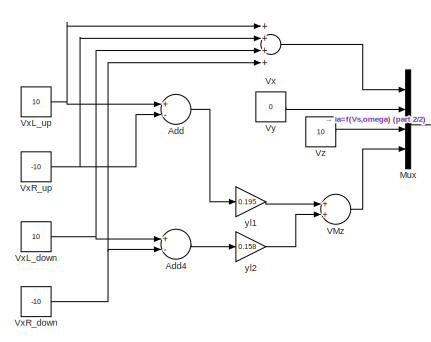
[diagram: root canvas - part 1/2, left side, full height]
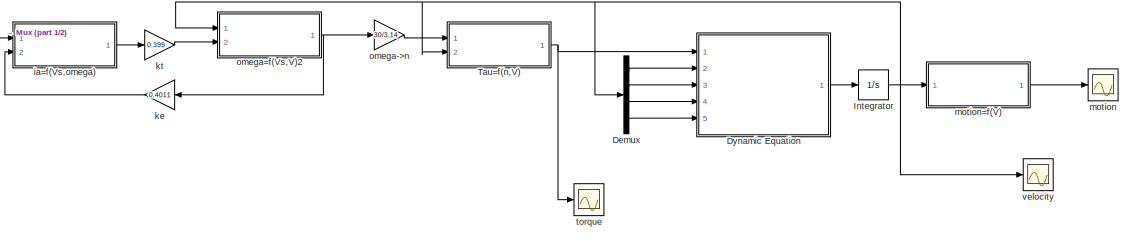
[diagram: root canvas - part 2/2, central region]
MODEL slx_ce1204db6cc1
KIND model
CONFIG AbsTol = auto
CONFIG FixedStep = auto
CONFIG MaxStep = auto
CONFIG MinStep = auto
CONFIG RelTol = 1e-3
CONFIG SampleTimeConstraint = Unconstrained
CONFIG Solver = VariableStepAuto
CONFIG SolverMode = Auto
CONFIG SolverName = VariableStepAuto
CONFIG StartTime = 0.0
CONFIG StopTime = 150
BLOCK [Sum] Add
  InputSameDT = off
  Inputs = +-
  OutDataTypeStr = Inherit: Inherit via internal rule
  Ports = [2, 1]
  SaturateOnIntegerOverflow = off
BLOCK [Sum] Add4
  InputSameDT = off
  Inputs = +-
  OutDataTypeStr = Inherit: Inherit via internal rule
  Ports = [2, 1]
  SaturateOnIntegerOverflow = off
BLOCK [Demux] Demux
  DisplayOption = bar
  Ports = [1, 4]
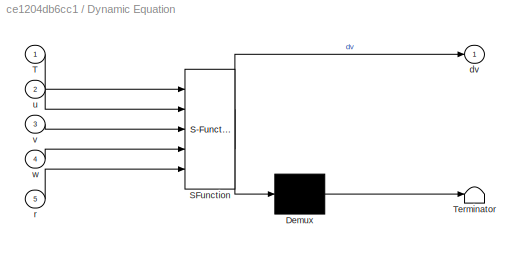
BLOCK [SubSystem] Dynamic Equation
  ErrorFcn = Stateflow.Translate.translate
  PermitHierarchicalResolution = ExplicitOnly
  Ports = [5, 1]
  RequestExecContextInheritance = off
  SFBlockType = MATLAB Function
  TreatAsAtomicUnit = on
  Variant = off
BLOCK [Demux] Dynamic Equation/ Demux 
  Outputs = 1
  Ports = [1, 1]
BLOCK [S-Function] Dynamic Equation/ SFunction 
  EnableBusSupport = on
  FunctionName = sf_sfun
  PortCounts = [5 2]
  Ports = [5, 2]
  SFunctionDeploymentMode = off
  Tag = Stateflow S-Function UUV_Model 1
BLOCK [Terminator] Dynamic Equation/ Terminator 
BLOCK [Inport] Dynamic Equation/T
  IconDisplay = Port number
BLOCK [Outport] Dynamic Equation/dv
  IconDisplay = Port number
BLOCK [Inport] Dynamic Equation/r
  IconDisplay = Port number
  Port = 5
BLOCK [Inport] Dynamic Equation/u
  IconDisplay = Port number
  Port = 2
BLOCK [Inport] Dynamic Equation/v
  IconDisplay = Port number
  Port = 3
BLOCK [Inport] Dynamic Equation/w
  IconDisplay = Port number
  Port = 4
BLOCK [Integrator] Integrator
  Ports = [1, 1]
BLOCK [Mux] Mux
  DisplayOption = bar
  Ports = [4, 1]
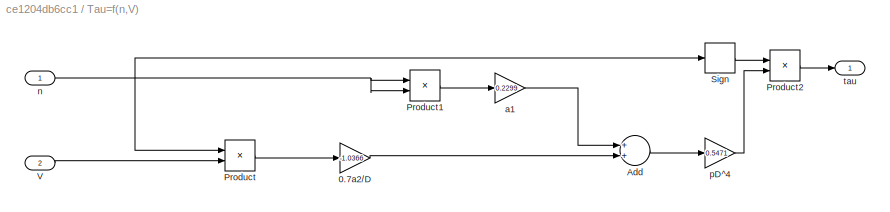
BLOCK [SubSystem] Tau=f(n,V)
  Ports = [2, 1]
  RequestExecContextInheritance = off
  Variant = off
BLOCK [Gain] Tau=f(n,V)/0.7a2//D
  Gain = -1.0366
  OutDataTypeStr = Inherit: Inherit via internal rule
  ParamDataTypeStr = Inherit: Inherit via internal rule
  SaturateOnIntegerOverflow = off
BLOCK [Sum] Tau=f(n,V)/Add
  InputSameDT = off
  OutDataTypeStr = Inherit: Inherit via internal rule
  Ports = [2, 1]
  SaturateOnIntegerOverflow = off
BLOCK [Product] Tau=f(n,V)/Product
  InputSameDT = off
  OutDataTypeStr = Inherit: Inherit via internal rule
  Ports = [2, 1]
  RndMeth = Floor
  SaturateOnIntegerOverflow = off
BLOCK [Product] Tau=f(n,V)/Product1
  InputSameDT = off
  OutDataTypeStr = Inherit: Inherit via internal rule
  Ports = [2, 1]
  RndMeth = Floor
  SaturateOnIntegerOverflow = off
BLOCK [Product] Tau=f(n,V)/Product2
  InputSameDT = off
  OutDataTypeStr = Inherit: Inherit via internal rule
  Ports = [2, 1]
  RndMeth = Floor
  SaturateOnIntegerOverflow = off
BLOCK [Signum] Tau=f(n,V)/Sign
BLOCK [Inport] Tau=f(n,V)/V
  IconDisplay = Port number
  Port = 2
BLOCK [Gain] Tau=f(n,V)/a1
  Gain = 0.2299
  OutDataTypeStr = Inherit: Inherit via internal rule
  ParamDataTypeStr = Inherit: Inherit via internal rule
  SaturateOnIntegerOverflow = off
BLOCK [Inport] Tau=f(n,V)/n
  IconDisplay = Port number
BLOCK [Gain] Tau=f(n,V)/pD^4
  Gain = 0.5471
  OutDataTypeStr = Inherit: Inherit via internal rule
  ParamDataTypeStr = Inherit: Inherit via internal rule
  SaturateOnIntegerOverflow = off
BLOCK [Outport] Tau=f(n,V)/tau
  IconDisplay = Port number
BLOCK [Sum] VMz
  InputSameDT = off
  OutDataTypeStr = Inherit: Inherit via internal rule
  Ports = [2, 1]
  SaturateOnIntegerOverflow = off
BLOCK [Sum] Vx
  InputSameDT = off
  Inputs = ++++
  OutDataTypeStr = Inherit: Inherit via internal rule
  Ports = [4, 1]
  SaturateOnIntegerOverflow = off
BLOCK [Constant] VxL_down
  Value = 10
BLOCK [Constant] VxL_up
  Value = 10
BLOCK [Constant] VxR_down
  Value = -10
BLOCK [Constant] VxR_up
  Value = -10
BLOCK [Constant] Vy
  Value = 0
BLOCK [Constant] Vz
  Value = 10
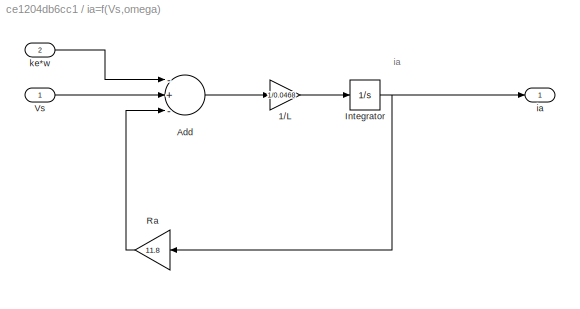
BLOCK [SubSystem] ia=f(Vs,omega)
  Ports = [2, 1]
  RequestExecContextInheritance = off
  Variant = off
BLOCK [Gain] ia=f(Vs,omega)/1//L
  Gain = 1/0.0468
  OutDataTypeStr = Inherit: Inherit via internal rule
  ParamDataTypeStr = Inherit: Inherit via internal rule
  SaturateOnIntegerOverflow = off
BLOCK [Sum] ia=f(Vs,omega)/Add
  InputSameDT = off
  Inputs = -+-
  OutDataTypeStr = Inherit: Inherit via internal rule
  Ports = [3, 1]
  SaturateOnIntegerOverflow = off
BLOCK [Integrator] ia=f(Vs,omega)/Integrator
  Ports = [1, 1]
BLOCK [Gain] ia=f(Vs,omega)/Ra
  Gain = 11.8
  OutDataTypeStr = Inherit: Inherit via internal rule
  ParamDataTypeStr = Inherit: Inherit via internal rule
  SaturateOnIntegerOverflow = off
BLOCK [Inport] ia=f(Vs,omega)/Vs
  IconDisplay = Port number
BLOCK [Outport] ia=f(Vs,omega)/ia
  IconDisplay = Port number
BLOCK [Inport] ia=f(Vs,omega)/ke*w
  IconDisplay = Port number
  Port = 2
BLOCK [Gain] ke
  Gain = 0.4011
  OutDataTypeStr = Inherit: Inherit via internal rule
  ParamDataTypeStr = Inherit: Inherit via internal rule
  SaturateOnIntegerOverflow = off
BLOCK [Gain] kt
  Gain = 0.399
  OutDataTypeStr = Inherit: Inherit via internal rule
  ParamDataTypeStr = Inherit: Inherit via internal rule
  SaturateOnIntegerOverflow = off
BLOCK [Scope] motion
  Ports = [1]
  ScopeSpecificationString = Simulink.scopes.TimeScopeBlockCfg('CurrentConfiguration', extmgr.ConfigurationSet(extmgr.Configuration('Core','General UI',true),extmgr.Configuration('Core','Source UI',true),extmgr.Configuration('Sources','WiredSimulink',true,'DataLoggingVariableName','ScopeData2'),extmgr.Configuration('Visuals','Time Domain',true,'SerializedDisplays',{struct('MinYLimReal','-8.54654','MaxYLimReal','76.70793','YLa...<+1451ch>
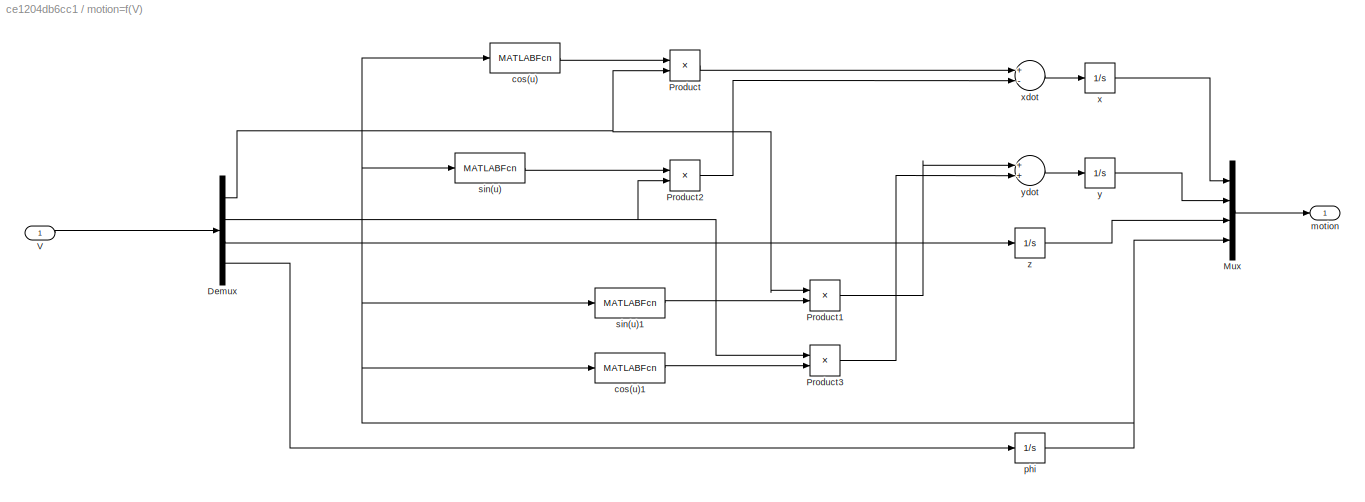
BLOCK [SubSystem] motion=f(V)
  Ports = [1, 1]
  RequestExecContextInheritance = off
  Variant = off
BLOCK [Demux] motion=f(V)/Demux
  DisplayOption = bar
  Ports = [1, 4]
BLOCK [Mux] motion=f(V)/Mux
  DisplayOption = bar
  Ports = [4, 1]
BLOCK [Product] motion=f(V)/Product
  InputSameDT = off
  OutDataTypeStr = Inherit: Inherit via internal rule
  Ports = [2, 1]
  RndMeth = Floor
  SaturateOnIntegerOverflow = off
BLOCK [Product] motion=f(V)/Product1
  InputSameDT = off
  OutDataTypeStr = Inherit: Inherit via internal rule
  Ports = [2, 1]
  RndMeth = Floor
  SaturateOnIntegerOverflow = off
BLOCK [Product] motion=f(V)/Product2
  InputSameDT = off
  OutDataTypeStr = Inherit: Inherit via internal rule
  Ports = [2, 1]
  RndMeth = Floor
  SaturateOnIntegerOverflow = off
BLOCK [Product] motion=f(V)/Product3
  InputSameDT = off
  OutDataTypeStr = Inherit: Inherit via internal rule
  Ports = [2, 1]
  RndMeth = Floor
  SaturateOnIntegerOverflow = off
BLOCK [Inport] motion=f(V)/V
  IconDisplay = Port number
BLOCK [MATLABFcn] motion=f(V)/cos(u)
  MATLABFcn = cos(u)
  Ports = [1, 1]
BLOCK [MATLABFcn] motion=f(V)/cos(u)1
  MATLABFcn = cos(u)
  Ports = [1, 1]
BLOCK [Outport] motion=f(V)/motion
  IconDisplay = Port number
BLOCK [Integrator] motion=f(V)/phi
  Ports = [1, 1]
BLOCK [MATLABFcn] motion=f(V)/sin(u)
  MATLABFcn = sin(u)
  Ports = [1, 1]
BLOCK [MATLABFcn] motion=f(V)/sin(u)1
  MATLABFcn = sin(u)
  Ports = [1, 1]
BLOCK [Integrator] motion=f(V)/x
  Ports = [1, 1]
BLOCK [Sum] motion=f(V)/xdot
  InputSameDT = off
  Inputs = +-
  OutDataTypeStr = Inherit: Inherit via internal rule
  Ports = [2, 1]
  SaturateOnIntegerOverflow = off
BLOCK [Integrator] motion=f(V)/y
  Ports = [1, 1]
BLOCK [Sum] motion=f(V)/ydot
  InputSameDT = off
  OutDataTypeStr = Inherit: Inherit via internal rule
  Ports = [2, 1]
  SaturateOnIntegerOverflow = off
BLOCK [Integrator] motion=f(V)/z
  Ports = [1, 1]
BLOCK [Gain] omega->n
  Gain = 30/3.14
  OutDataTypeStr = Inherit: Inherit via internal rule
  ParamDataTypeStr = Inherit: Inherit via internal rule
  SaturateOnIntegerOverflow = off
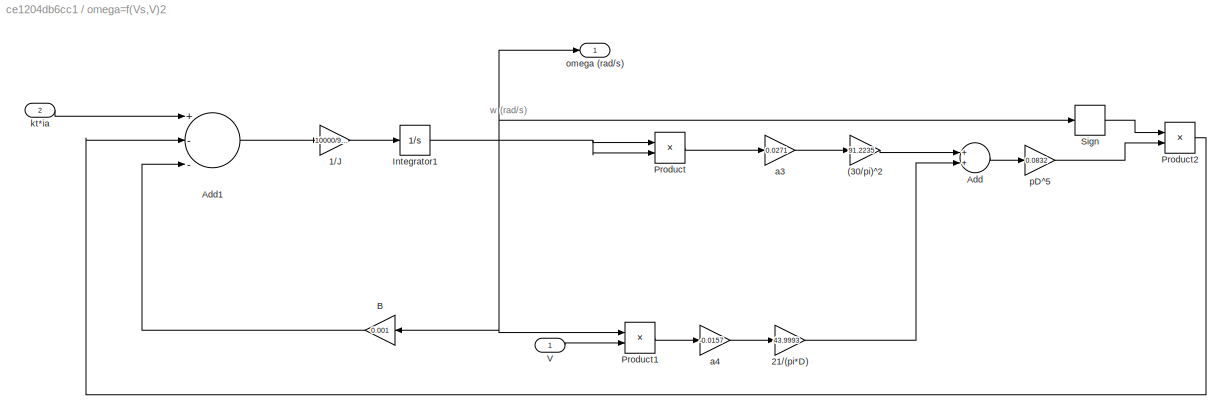
BLOCK [SubSystem] omega=f(Vs,V)2
  Ports = [2, 1]
  RequestExecContextInheritance = off
  Variant = off
BLOCK [Gain] omega=f(Vs,V)2/(30//pi)^2
  Gain = 91.2235
  OutDataTypeStr = Inherit: Inherit via internal rule
  ParamDataTypeStr = Inherit: Inherit via internal rule
  SaturateOnIntegerOverflow = off
BLOCK [Gain] omega=f(Vs,V)2/1//J
  Gain = 10000/9.275
  OutDataTypeStr = Inherit: Inherit via internal rule
  ParamDataTypeStr = Inherit: Inherit via internal rule
  SaturateOnIntegerOverflow = off
BLOCK [Gain] omega=f(Vs,V)2/21//(pi*D)
  Gain = 43.9993
  OutDataTypeStr = Inherit: Inherit via internal rule
  ParamDataTypeStr = Inherit: Inherit via internal rule
  SaturateOnIntegerOverflow = off
BLOCK [Sum] omega=f(Vs,V)2/Add
  InputSameDT = off
  OutDataTypeStr = Inherit: Inherit via internal rule
  Ports = [2, 1]
  SaturateOnIntegerOverflow = off
BLOCK [Sum] omega=f(Vs,V)2/Add1
  InputSameDT = off
  Inputs = +--
  OutDataTypeStr = Inherit: Inherit via internal rule
  Ports = [3, 1]
  SaturateOnIntegerOverflow = off
BLOCK [Gain] omega=f(Vs,V)2/B
  Gain = 0.001
  OutDataTypeStr = Inherit: Inherit via internal rule
  ParamDataTypeStr = Inherit: Inherit via internal rule
  SaturateOnIntegerOverflow = off
BLOCK [Integrator] omega=f(Vs,V)2/Integrator1
  Ports = [1, 1]
BLOCK [Product] omega=f(Vs,V)2/Product
  InputSameDT = off
  OutDataTypeStr = Inherit: Inherit via internal rule
  Ports = [2, 1]
  RndMeth = Floor
  SaturateOnIntegerOverflow = off
BLOCK [Product] omega=f(Vs,V)2/Product1
  InputSameDT = off
  OutDataTypeStr = Inherit: Inherit via internal rule
  Ports = [2, 1]
  RndMeth = Floor
  SaturateOnIntegerOverflow = off
BLOCK [Product] omega=f(Vs,V)2/Product2
  InputSameDT = off
  OutDataTypeStr = Inherit: Inherit via internal rule
  Ports = [2, 1]
  RndMeth = Floor
  SaturateOnIntegerOverflow = off
BLOCK [Signum] omega=f(Vs,V)2/Sign
BLOCK [Inport] omega=f(Vs,V)2/V
  IconDisplay = Port number
BLOCK [Gain] omega=f(Vs,V)2/a3
  Gain = 0.0271
  OutDataTypeStr = Inherit: Inherit via internal rule
  ParamDataTypeStr = Inherit: Inherit via internal rule
  SaturateOnIntegerOverflow = off
BLOCK [Gain] omega=f(Vs,V)2/a4
  Gain = -0.0157
  OutDataTypeStr = Inherit: Inherit via internal rule
  ParamDataTypeStr = Inherit: Inherit via internal rule
  SaturateOnIntegerOverflow = off
BLOCK [Inport] omega=f(Vs,V)2/kt*ia
  IconDisplay = Port number
  Port = 2
BLOCK [Outport] omega=f(Vs,V)2/omega (rad//s)
  IconDisplay = Port number
BLOCK [Gain] omega=f(Vs,V)2/pD^5
  Gain = 0.0832
  OutDataTypeStr = Inherit: Inherit via internal rule
  ParamDataTypeStr = Inherit: Inherit via internal rule
  SaturateOnIntegerOverflow = off
BLOCK [Scope] torque
  Ports = [1]
  ScopeSpecificationString = Simulink.scopes.TimeScopeBlockCfg('CurrentConfiguration', extmgr.ConfigurationSet(extmgr.Configuration('Core','General UI',true),extmgr.Configuration('Core','Source UI',true),extmgr.Configuration('Sources','WiredSimulink',true),extmgr.Configuration('Visuals','Time Domain',true,'SerializedDisplays',{struct('MinYLimReal','-2.23173','MaxYLimReal','20.0856','YLabelReal','','MinYLimMag','0.00000','MaxY...<+1404ch>
BLOCK [Scope] velocity
  Ports = [1]
  ScopeSpecificationString = Simulink.scopes.TimeScopeBlockCfg('CurrentConfiguration', extmgr.ConfigurationSet(extmgr.Configuration('Core','General UI',true),extmgr.Configuration('Core','Source UI',true),extmgr.Configuration('Sources','WiredSimulink',true,'DataLoggingVariableName','ScopeData1'),extmgr.Configuration('Visuals','Time Domain',true,'SerializedDisplays',{struct('MinYLimReal','-0.06799','MaxYLimReal','0.51504','YLab...<+1462ch>
BLOCK [Gain] yl1
  Gain = 0.195
  OutDataTypeStr = Inherit: Inherit via internal rule
  ParamDataTypeStr = Inherit: Inherit via internal rule
  SaturateOnIntegerOverflow = off
BLOCK [Gain] yl2
  Gain = 0.158
  OutDataTypeStr = Inherit: Inherit via internal rule
  ParamDataTypeStr = Inherit: Inherit via internal rule
  SaturateOnIntegerOverflow = off
ANNOTATION ia=f(Vs,omega): ia
ANNOTATION omega=f(Vs,V)2: w (rad/s)
LINE Add4:1 -> yl2:1
LINE Add:1 -> yl1:1
LINE Demux:1 -> Dynamic Equation:2
LINE Demux:2 -> Dynamic Equation:3
LINE Demux:3 -> Dynamic Equation:4
LINE Demux:4 -> Dynamic Equation:5
LINE Dynamic Equation:1 -> Integrator:1
NET Integrator:1 -> Demux:1, Tau=f(n,V):2, motion=f(V):1, omega=f(Vs,V)2:1, velocity:1
LINE Mux:1 -> ia=f(Vs,omega):1
LINE Tau=f(n,V)/0.7a2//D:1 -> Tau=f(n,V)/Add:2
LINE Tau=f(n,V)/Add:1 -> Tau=f(n,V)/pD^4:1
LINE Tau=f(n,V)/Product1:1 -> Tau=f(n,V)/a1:1
LINE Tau=f(n,V)/Product2:1 -> Tau=f(n,V)/tau:1
LINE Tau=f(n,V)/Product:1 -> Tau=f(n,V)/0.7a2//D:1
LINE Tau=f(n,V)/Sign:1 -> Tau=f(n,V)/Product2:1
LINE Tau=f(n,V)/V:1 -> Tau=f(n,V)/Product:2
LINE Tau=f(n,V)/a1:1 -> Tau=f(n,V)/Add:1
NET Tau=f(n,V)/n:1 -> Tau=f(n,V)/Product1:1, Tau=f(n,V)/Product1:2, Tau=f(n,V)/Product:1, Tau=f(n,V)/Sign:1
LINE Tau=f(n,V)/pD^4:1 -> Tau=f(n,V)/Product2:2
NET Tau=f(n,V):1 -> Dynamic Equation:1, torque:1
LINE VMz:1 -> Mux:4
LINE Vx:1 -> Mux:1
NET VxL_down:1 -> Add4:1, Vx:3
NET VxL_up:1 -> Add:1, Vx:1
NET VxR_down:1 -> Add4:2, Vx:4
NET VxR_up:1 -> Add:2, Vx:2
LINE Vy:1 -> Mux:2
LINE Vz:1 -> Mux:3
LINE ia=f(Vs,omega)/1//L:1 -> ia=f(Vs,omega)/Integrator:1
LINE ia=f(Vs,omega)/Add:1 -> ia=f(Vs,omega)/1//L:1
NET ia=f(Vs,omega)/Integrator:1 -> ia=f(Vs,omega)/Ra:1, ia=f(Vs,omega)/ia:1
LINE ia=f(Vs,omega)/Ra:1 -> ia=f(Vs,omega)/Add:3
LINE ia=f(Vs,omega)/Vs:1 -> ia=f(Vs,omega)/Add:2
LINE ia=f(Vs,omega)/ke*w:1 -> ia=f(Vs,omega)/Add:1
LINE ia=f(Vs,omega):1 -> kt:1
LINE ke:1 -> ia=f(Vs,omega):2
LINE kt:1 -> omega=f(Vs,V)2:2
NET motion=f(V)/Demux:1 -> motion=f(V)/Product1:1, motion=f(V)/Product:2
NET motion=f(V)/Demux:2 -> motion=f(V)/Product2:2, motion=f(V)/Product3:1
LINE motion=f(V)/Demux:3 -> motion=f(V)/z:1
LINE motion=f(V)/Demux:4 -> motion=f(V)/phi:1
LINE motion=f(V)/Mux:1 -> motion=f(V)/motion:1
LINE motion=f(V)/Product1:1 -> motion=f(V)/ydot:1
LINE motion=f(V)/Product2:1 -> motion=f(V)/xdot:2
LINE motion=f(V)/Product3:1 -> motion=f(V)/ydot:2
LINE motion=f(V)/Product:1 -> motion=f(V)/xdot:1
LINE motion=f(V)/V:1 -> motion=f(V)/Demux:1
LINE motion=f(V)/cos(u)1:1 -> motion=f(V)/Product3:2
LINE motion=f(V)/cos(u):1 -> motion=f(V)/Product:1
NET motion=f(V)/phi:1 -> motion=f(V)/Mux:4, motion=f(V)/cos(u)1:1, motion=f(V)/cos(u):1, motion=f(V)/sin(u)1:1, motion=f(V)/sin(u):1
LINE motion=f(V)/sin(u)1:1 -> motion=f(V)/Product1:2
LINE motion=f(V)/sin(u):1 -> motion=f(V)/Product2:1
LINE motion=f(V)/x:1 -> motion=f(V)/Mux:1
LINE motion=f(V)/xdot:1 -> motion=f(V)/x:1
LINE motion=f(V)/y:1 -> motion=f(V)/Mux:2
LINE motion=f(V)/ydot:1 -> motion=f(V)/y:1
LINE motion=f(V)/z:1 -> motion=f(V)/Mux:3
LINE motion=f(V):1 -> motion:1
LINE omega->n:1 -> Tau=f(n,V):1
LINE omega=f(Vs,V)2/(30//pi)^2:1 -> omega=f(Vs,V)2/Add:1
LINE omega=f(Vs,V)2/1//J:1 -> omega=f(Vs,V)2/Integrator1:1
LINE omega=f(Vs,V)2/21//(pi*D):1 -> omega=f(Vs,V)2/Add:2
LINE omega=f(Vs,V)2/Add1:1 -> omega=f(Vs,V)2/1//J:1
LINE omega=f(Vs,V)2/Add:1 -> omega=f(Vs,V)2/pD^5:1
LINE omega=f(Vs,V)2/B:1 -> omega=f(Vs,V)2/Add1:3
NET omega=f(Vs,V)2/Integrator1:1 -> omega=f(Vs,V)2/B:1, omega=f(Vs,V)2/Product1:1, omega=f(Vs,V)2/Product:1, omega=f(Vs,V)2/Product:2, omega=f(Vs,V)2/Sign:1, omega=f(Vs,V)2/omega (rad//s):1
LINE omega=f(Vs,V)2/Product1:1 -> omega=f(Vs,V)2/a4:1
LINE omega=f(Vs,V)2/Product2:1 -> omega=f(Vs,V)2/Add1:2
LINE omega=f(Vs,V)2/Product:1 -> omega=f(Vs,V)2/a3:1
LINE omega=f(Vs,V)2/Sign:1 -> omega=f(Vs,V)2/Product2:1
LINE omega=f(Vs,V)2/V:1 -> omega=f(Vs,V)2/Product1:2
LINE omega=f(Vs,V)2/a3:1 -> omega=f(Vs,V)2/(30//pi)^2:1
LINE omega=f(Vs,V)2/a4:1 -> omega=f(Vs,V)2/21//(pi*D):1
LINE omega=f(Vs,V)2/kt*ia:1 -> omega=f(Vs,V)2/Add1:1
LINE omega=f(Vs,V)2/pD^5:1 -> omega=f(Vs,V)2/Product2:2
NET omega=f(Vs,V)2:1 -> ke:1, omega->n:1
LINE yl1:1 -> VMz:1
LINE yl2:1 -> VMz:2
note: NET lines group one-source signal fan-out (src -> all destinations, sorted); 1:1 wires keep LINE
CHART Dynamic Equation states=1 transitions=1
  STATE_LABEL 'eML_blk_kernel()'
  STATE_LABEL 'SCRIPT:\nfunction dv = fcn(T,u,v,w,r)\n%#codegen\n\n%%velocity\nvel=[u;v;w;r];\n%% propeller\nD=0.152;\n\n%% motor\nJ=9.275*1e-4;\nke=0.4011;\nRa=11.8;\nL=0.0468;\nkt=0.399;\nB=0.001;\nm=128;\ng=9.8;\n\n%%cordinate\nxG=0;yG=0;zG=0.054;\nIz=14.213;\n\n%%matirx\nMrb=[m 0 0 -m*yG;0 m 0 m*xG;0 0 m 0;-m*yG m*xG 0 Iz];\nMa=-1*[-33.48 0 0 0;0 -110.8941 0 -4.921;0 0 -147.576 0;0 -4.921 0 -12.75];\nCrb=-1*[0 0 0 -m*(xG*r+v);0 0 0 -...<+379ch>'
